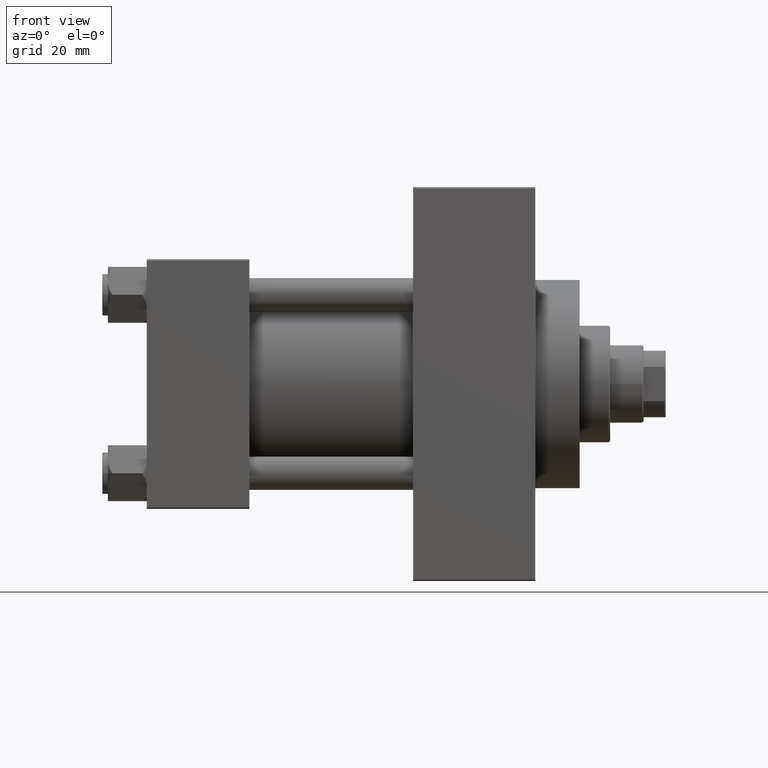
[diagram: clean part render]
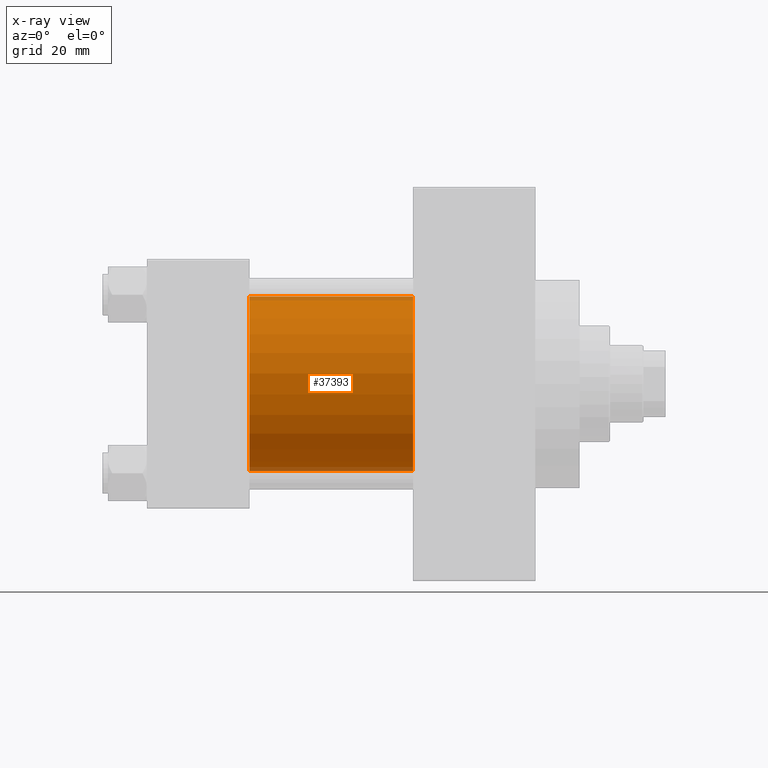
[diagram: x-ray — body ghosted, one internal face saturated and labeled with its STEP entity id]
A machine part, front view, then the same camera in x-ray: the body is ghosted and one INTERNAL B-rep face — a face not visible from any outside direction — is saturated and labeled: STEP entity #37393.
In plain terms, the highlighted cylindrical surface (partial cylindrical patch) has radius 31.5 mm, axis along (-1, -0, -0).
Its self-contained STEP definition (entity closure, byte-faithful):
#2501 = AXIS2_PLACEMENT_3D ( 'NONE', #46271, #35515, #31943 ) ;
#4038 = VERTEX_POINT ( 'NONE', #40858 ) ;
#4407 = ORIENTED_EDGE ( 'NONE', *, *, #12149, .T. ) ;
#6282 = VECTOR ( 'NONE', #6542, 1000.000000000000000 ) ;
#6542 = DIRECTION ( 'NONE',  ( -1.000000000000000000, -0.000000000000000000, -0.000000000000000000 ) ) ;
#7789 = DIRECTION ( 'NONE',  ( -1.000000000000000000, -0.000000000000000000, -0.000000000000000000 ) ) ;
#8916 = CARTESIAN_POINT ( 'NONE',  ( 37.00000000000000000, -2.602085213965210642E-15, 0.000000000000000000 ) ) ;
#10814 = LINE ( 'NONE', #13690, #6282 ) ;
#12001 = ORIENTED_EDGE ( 'NONE', *, *, #45114, .F. ) ;
#12010 = DIRECTION ( 'NONE',  ( 0.000000000000000000, 0.000000000000000000, -1.000000000000000000 ) ) ;
#12149 = EDGE_CURVE ( 'NONE', #13432, #4038, #36202, .T. ) ;
#13432 = VERTEX_POINT ( 'NONE', #25477 ) ;
#13690 = CARTESIAN_POINT ( 'NONE',  ( 96.00000000000000000, 1.255552203348951850E-15, -31.50000000000000000 ) ) ;
#14391 = EDGE_LOOP ( 'NONE', ( #4407, #35661, #45655, #12001 ) ) ;
#14700 = CARTESIAN_POINT ( 'NONE',  ( 37.00000000000000000, -2.602085213965210642E-15, 31.50000000000000000 ) ) ;
#17642 = DIRECTION ( 'NONE',  ( 0.000000000000000000, 0.000000000000000000, -1.000000000000000000 ) ) ;
#18909 = AXIS2_PLACEMENT_3D ( 'NONE', #8916, #41609, #12010 ) ;
#20449 = CIRCLE ( 'NONE', #18909, 31.50000000000000000 ) ;
#20814 = VERTEX_POINT ( 'NONE', #14700 ) ;
#22349 = LINE ( 'NONE', #26387, #42756 ) ;
#24823 = CARTESIAN_POINT ( 'NONE',  ( 96.00000000000000000, -2.602085213965210642E-15, 0.000000000000000000 ) ) ;
#25477 = CARTESIAN_POINT ( 'NONE',  ( 96.00000000000000000, -2.602085213965210642E-15, 31.50000000000000000 ) ) ;
#25889 = EDGE_CURVE ( 'NONE', #20814, #32294, #20449, .T. ) ;
#26387 = CARTESIAN_POINT ( 'NONE',  ( 96.00000000000000000, -2.602085213965210642E-15, 31.50000000000000000 ) ) ;
#31943 = DIRECTION ( 'NONE',  ( 0.000000000000000000, 0.000000000000000000, 1.000000000000000000 ) ) ;
#32294 = VERTEX_POINT ( 'NONE', #34704 ) ;
#34704 = CARTESIAN_POINT ( 'NONE',  ( 37.00000000000000000, 1.255552203348951850E-15, -31.50000000000000000 ) ) ;
#34808 = DIRECTION ( 'NONE',  ( 1.000000000000000000, 0.000000000000000000, 0.000000000000000000 ) ) ;
#35515 = DIRECTION ( 'NONE',  ( -1.000000000000000000, -0.000000000000000000, -0.000000000000000000 ) ) ;
#35661 = ORIENTED_EDGE ( 'NONE', *, *, #35938, .T. ) ;
#35938 = EDGE_CURVE ( 'NONE', #4038, #32294, #10814, .T. ) ;
#36202 = CIRCLE ( 'NONE', #38317, 31.50000000000000000 ) ;
#37393 = ADVANCED_FACE ( 'NONE', ( #42949 ), #43401, .F. ) ;
#38317 = AXIS2_PLACEMENT_3D ( 'NONE', #24823, #34808, #17642 ) ;
#40858 = CARTESIAN_POINT ( 'NONE',  ( 96.00000000000000000, 1.255552203348951850E-15, -31.50000000000000000 ) ) ;
#41609 = DIRECTION ( 'NONE',  ( 1.000000000000000000, 0.000000000000000000, 0.000000000000000000 ) ) ;
#42756 = VECTOR ( 'NONE', #7789, 1000.000000000000000 ) ;
#42949 = FACE_OUTER_BOUND ( 'NONE', #14391, .T. ) ;
#43401 = CYLINDRICAL_SURFACE ( 'NONE', #2501, 31.50000000000000000 ) ;
#45114 = EDGE_CURVE ( 'NONE', #13432, #20814, #22349, .T. ) ;
#45655 = ORIENTED_EDGE ( 'NONE', *, *, #25889, .F. ) ;
#46271 = CARTESIAN_POINT ( 'NONE',  ( 96.00000000000000000, -2.602085213965210642E-15, 0.000000000000000000 ) ) ;